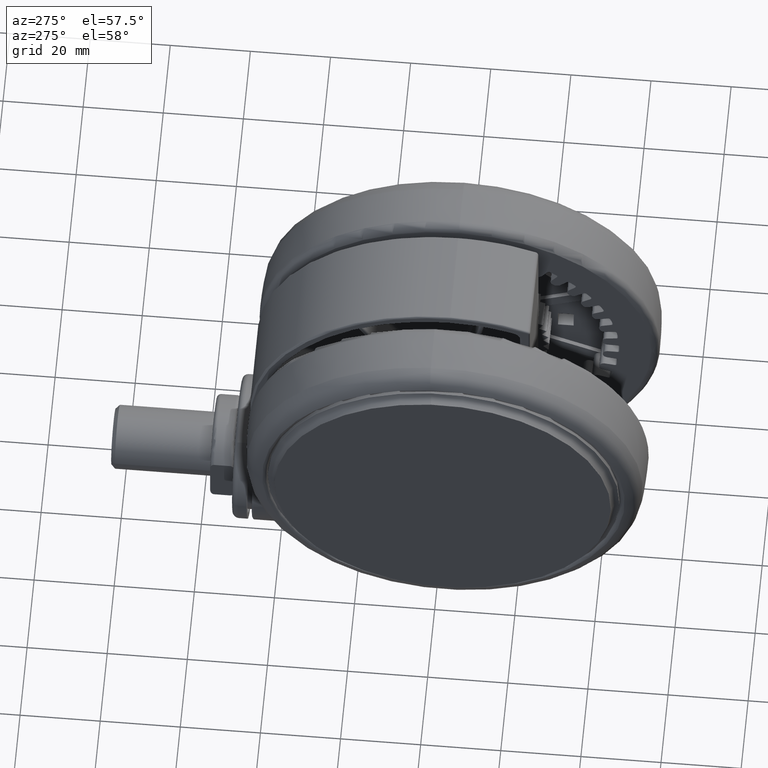
[diagram: clean part render]
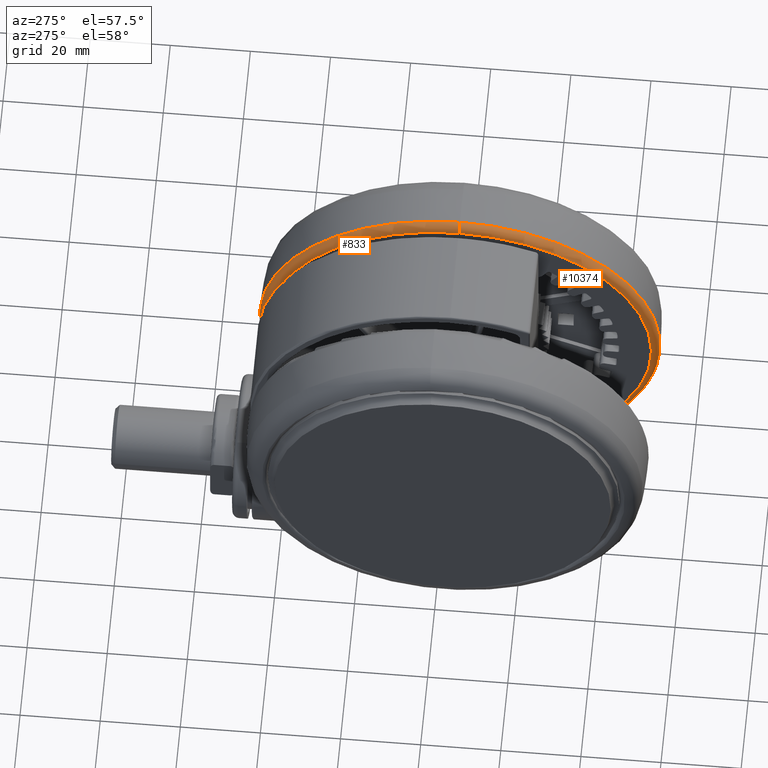
[diagram: same view with one multi-face feature highlighted, each face labeled with its STEP entity id]
A machine part, auxiliary view. The highlighted faces form ONE feature: a constant-radius fillet chain: 2 tangent blend faces with common blend radius 2 mm. The faces share edges in the B-rep.
Their STEP definitions:
[1] entity #10374 (Torus):
#3140 = FACE_OUTER_BOUND ( 'NONE', #46601, .T. ) ;
#5573 = CARTESIAN_POINT ( 'NONE',  ( -4.977191908166088000E-013, 48.00003196817213100, -16.10000000000006500 ) ) ;
#7413 = VERTEX_POINT ( 'NONE', #70929 ) ;
#8606 = ORIENTED_EDGE ( 'NONE', *, *, #69954, .F. ) ;
#9293 = CARTESIAN_POINT ( 'NONE',  ( -5.184571451396491500E-013, 49.99999999999997200, -16.11130803549124100 ) ) ;
#10374 = ADVANCED_FACE ( 'NONE', ( #3140 ), #64654, .T. ) ;
#11590 = DIRECTION ( 'NONE',  ( -1.036914290279297500E-014, 1.000000000000000000, 0.0000000000000000000 ) ) ;
#16718 = VERTEX_POINT ( 'NONE', #39316 ) ;
#18835 = DIRECTION ( 'NONE',  ( -1.000000000000000000, -1.049160758270772000E-014, 0.0000000000000000000 ) ) ;
#19342 = AXIS2_PLACEMENT_3D ( 'NONE', #5573, #47262, #11590 ) ;
#21037 = CARTESIAN_POINT ( 'NONE',  ( 0.0000000000000000000, -2.775557561562891400E-014, -16.11130803549124100 ) ) ;
#21759 = DIRECTION ( 'NONE',  ( 0.0000000000000000000, 0.0000000000000000000, 1.000000000000000000 ) ) ;
#22799 = DIRECTION ( 'NONE',  ( 0.0000000000000000000, 0.0000000000000000000, 1.000000000000000000 ) ) ;
#27070 = DIRECTION ( 'NONE',  ( 1.049160758270772100E-014, -1.000000000000000000, 0.0000000000000000000 ) ) ;
#28482 = ORIENTED_EDGE ( 'NONE', *, *, #47761, .F. ) ;
#31618 = AXIS2_PLACEMENT_3D ( 'NONE', #54541, #18835, #60526 ) ;
#31704 = CIRCLE ( 'NONE', #19342, 2.000000000000001800 ) ;
#33115 = ORIENTED_EDGE ( 'NONE', *, *, #42065, .T. ) ;
#35105 = CIRCLE ( 'NONE', #55432, 50.00000000000000000 ) ;
#37953 = CARTESIAN_POINT ( 'NONE',  ( 5.245803791353860600E-013, -50.00000000000002100, -16.11130803549124100 ) ) ;
#39316 = CARTESIAN_POINT ( 'NONE',  ( 5.035974993674880100E-013, -48.00003196817218800, -18.10000000000006200 ) ) ;
#42065 = EDGE_CURVE ( 'NONE', #16718, #65006, #55093, .T. ) ;
#46509 = CARTESIAN_POINT ( 'NONE',  ( 0.0000000000000000000, -2.775557561562891400E-014, -16.10000000000006500 ) ) ;
#46601 = EDGE_LOOP ( 'NONE', ( #8606, #48178, #33115, #28482 ) ) ;
#47262 = DIRECTION ( 'NONE',  ( 1.000000000000000000, 1.036914290279298500E-014, -0.0000000000000000000 ) ) ;
#47761 = EDGE_CURVE ( 'NONE', #51719, #65006, #35105, .T. ) ;
#48178 = ORIENTED_EDGE ( 'NONE', *, *, #55570, .T. ) ;
#51719 = VERTEX_POINT ( 'NONE', #9293 ) ;
#53931 = CIRCLE ( 'NONE', #60898, 48.00003196817215900 ) ;
#54541 = CARTESIAN_POINT ( 'NONE',  ( 5.035974993674880100E-013, -48.00003196817218800, -16.10000000000006500 ) ) ;
#55093 = CIRCLE ( 'NONE', #31618, 2.000000000000001800 ) ;
#55432 = AXIS2_PLACEMENT_3D ( 'NONE', #21037, #62700, #27070 ) ;
#55570 = EDGE_CURVE ( 'NONE', #7413, #16718, #53931, .T. ) ;
#57462 = CARTESIAN_POINT ( 'NONE',  ( 0.0000000000000000000, -2.775557561562891400E-014, -18.10000000000006200 ) ) ;
#60526 = DIRECTION ( 'NONE',  ( 1.049160758270772300E-014, -1.000000000000000000, 0.0000000000000000000 ) ) ;
#60898 = AXIS2_PLACEMENT_3D ( 'NONE', #57462, #21759, #63439 ) ;
#62700 = DIRECTION ( 'NONE',  ( 0.0000000000000000000, 0.0000000000000000000, 1.000000000000000000 ) ) ;
#63439 = DIRECTION ( 'NONE',  ( 1.049160758270772000E-014, -1.000000000000000000, 0.0000000000000000000 ) ) ;
#64654 = TOROIDAL_SURFACE ( 'NONE', #75905, 48.00003196817215900, 1.999999999999999100 ) ;
#65006 = VERTEX_POINT ( 'NONE', #37953 ) ;
#69954 = EDGE_CURVE ( 'NONE', #7413, #51719, #31704, .T. ) ;
#70929 = CARTESIAN_POINT ( 'NONE',  ( -5.080881679781290800E-013, 48.00003196817213100, -18.10000000000006200 ) ) ;
#75905 = AXIS2_PLACEMENT_3D ( 'NONE', #46509, #22799, #76386 ) ;
#76386 = DIRECTION ( 'NONE',  ( 1.049160758270772000E-014, -1.000000000000000000, 0.0000000000000000000 ) ) ;
[2] entity #833 (Torus):
#346 = DIRECTION ( 'NONE',  ( 0.0000000000000000000, 0.0000000000000000000, 1.000000000000000000 ) ) ;
#642 = EDGE_CURVE ( 'NONE', #16718, #7413, #74913, .T. ) ;
#833 = ADVANCED_FACE ( 'NONE', ( #2250 ), #4105, .T. ) ;
#1561 = ORIENTED_EDGE ( 'NONE', *, *, #642, .T. ) ;
#2250 = FACE_OUTER_BOUND ( 'NONE', #40758, .T. ) ;
#4105 = TOROIDAL_SURFACE ( 'NONE', #52499, 48.00003196817215900, 1.999999999999999100 ) ;
#5573 = CARTESIAN_POINT ( 'NONE',  ( -4.977191908166088000E-013, 48.00003196817213100, -16.10000000000006500 ) ) ;
#7413 = VERTEX_POINT ( 'NONE', #70929 ) ;
#7650 = ORIENTED_EDGE ( 'NONE', *, *, #69954, .T. ) ;
#9293 = CARTESIAN_POINT ( 'NONE',  ( -5.184571451396491500E-013, 49.99999999999997200, -16.11130803549124100 ) ) ;
#10568 = CIRCLE ( 'NONE', #40523, 50.00000000000000000 ) ;
#11590 = DIRECTION ( 'NONE',  ( -1.036914290279297500E-014, 1.000000000000000000, 0.0000000000000000000 ) ) ;
#16718 = VERTEX_POINT ( 'NONE', #39316 ) ;
#17856 = DIRECTION ( 'NONE',  ( 1.049160758270772000E-014, -1.000000000000000000, 0.0000000000000000000 ) ) ;
#18106 = CARTESIAN_POINT ( 'NONE',  ( 0.0000000000000000000, -2.775557561562891400E-014, -16.10000000000006500 ) ) ;
#18835 = DIRECTION ( 'NONE',  ( -1.000000000000000000, -1.049160758270772000E-014, 0.0000000000000000000 ) ) ;
#18945 = DIRECTION ( 'NONE',  ( 0.0000000000000000000, 0.0000000000000000000, 1.000000000000000000 ) ) ;
#19342 = AXIS2_PLACEMENT_3D ( 'NONE', #5573, #47262, #11590 ) ;
#31618 = AXIS2_PLACEMENT_3D ( 'NONE', #54541, #18835, #60526 ) ;
#31704 = CIRCLE ( 'NONE', #19342, 2.000000000000001800 ) ;
#35782 = DIRECTION ( 'NONE',  ( 1.049160758270772000E-014, -1.000000000000000000, 0.0000000000000000000 ) ) ;
#35871 = DIRECTION ( 'NONE',  ( 0.0000000000000000000, 0.0000000000000000000, 1.000000000000000000 ) ) ;
#35939 = CARTESIAN_POINT ( 'NONE',  ( 0.0000000000000000000, -2.775557561562891400E-014, -18.10000000000006200 ) ) ;
#36011 = CARTESIAN_POINT ( 'NONE',  ( 0.0000000000000000000, -2.775557561562891400E-014, -16.11130803549124100 ) ) ;
#37953 = CARTESIAN_POINT ( 'NONE',  ( 5.245803791353860600E-013, -50.00000000000002100, -16.11130803549124100 ) ) ;
#38493 = ORIENTED_EDGE ( 'NONE', *, *, #42065, .F. ) ;
#39316 = CARTESIAN_POINT ( 'NONE',  ( 5.035974993674880100E-013, -48.00003196817218800, -18.10000000000006200 ) ) ;
#39559 = ORIENTED_EDGE ( 'NONE', *, *, #50060, .F. ) ;
#40523 = AXIS2_PLACEMENT_3D ( 'NONE', #36011, #346, #42026 ) ;
#40758 = EDGE_LOOP ( 'NONE', ( #1561, #7650, #39559, #38493 ) ) ;
#42026 = DIRECTION ( 'NONE',  ( 1.049160758270772100E-014, -1.000000000000000000, 0.0000000000000000000 ) ) ;
#42065 = EDGE_CURVE ( 'NONE', #16718, #65006, #55093, .T. ) ;
#47262 = DIRECTION ( 'NONE',  ( 1.000000000000000000, 1.036914290279298500E-014, -0.0000000000000000000 ) ) ;
#50060 = EDGE_CURVE ( 'NONE', #65006, #51719, #10568, .T. ) ;
#51719 = VERTEX_POINT ( 'NONE', #9293 ) ;
#52499 = AXIS2_PLACEMENT_3D ( 'NONE', #18106, #18945, #17856 ) ;
#54541 = CARTESIAN_POINT ( 'NONE',  ( 5.035974993674880100E-013, -48.00003196817218800, -16.10000000000006500 ) ) ;
#55093 = CIRCLE ( 'NONE', #31618, 2.000000000000001800 ) ;
#60526 = DIRECTION ( 'NONE',  ( 1.049160758270772300E-014, -1.000000000000000000, 0.0000000000000000000 ) ) ;
#65006 = VERTEX_POINT ( 'NONE', #37953 ) ;
#69893 = AXIS2_PLACEMENT_3D ( 'NONE', #35939, #35871, #35782 ) ;
#69954 = EDGE_CURVE ( 'NONE', #7413, #51719, #31704, .T. ) ;
#70929 = CARTESIAN_POINT ( 'NONE',  ( -5.080881679781290800E-013, 48.00003196817213100, -18.10000000000006200 ) ) ;
#74913 = CIRCLE ( 'NONE', #69893, 48.00003196817215900 ) ;